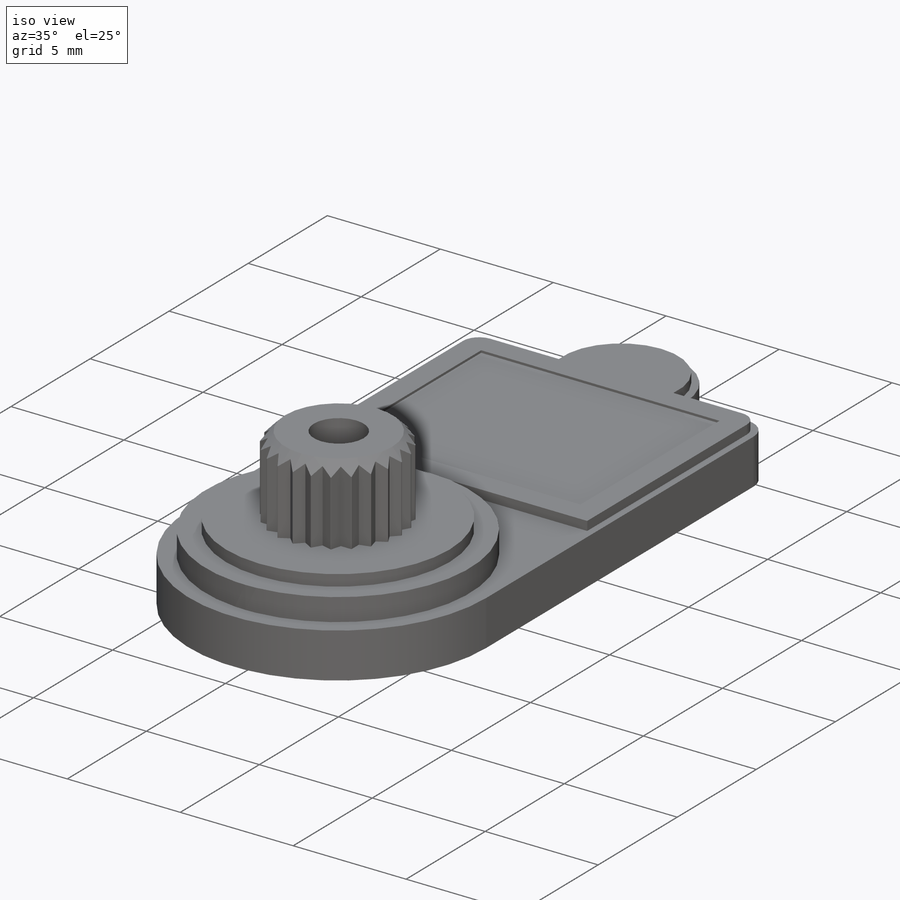
[diagram: iso view]
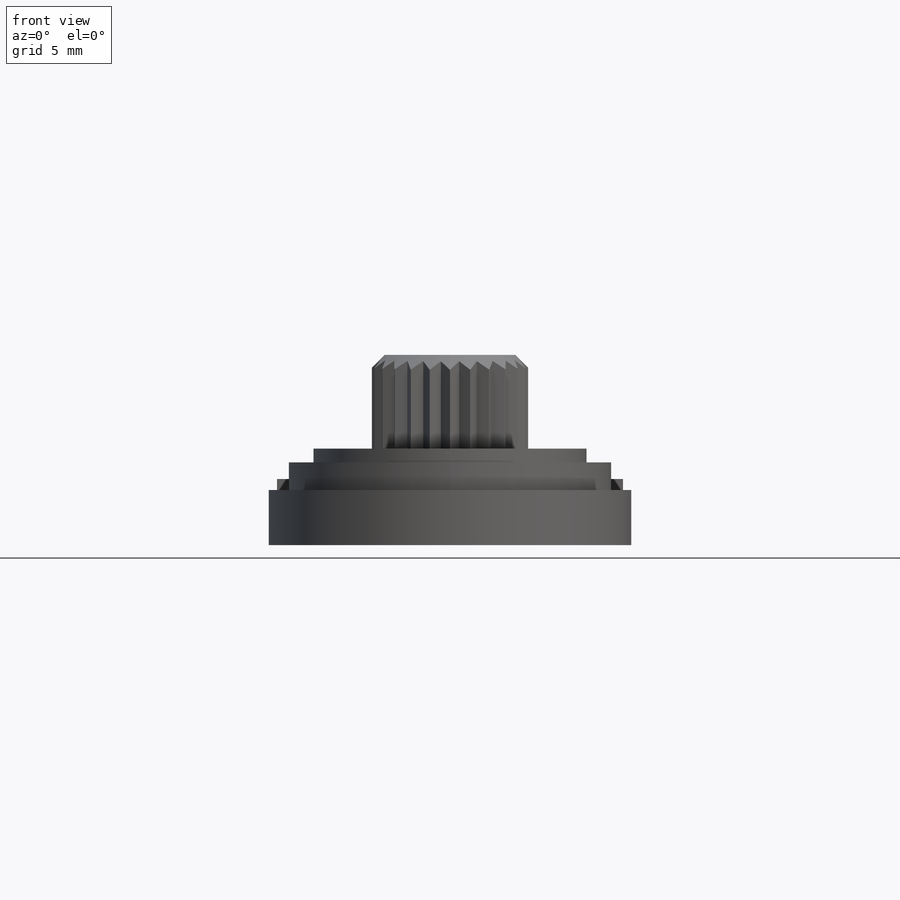
[diagram: front view]
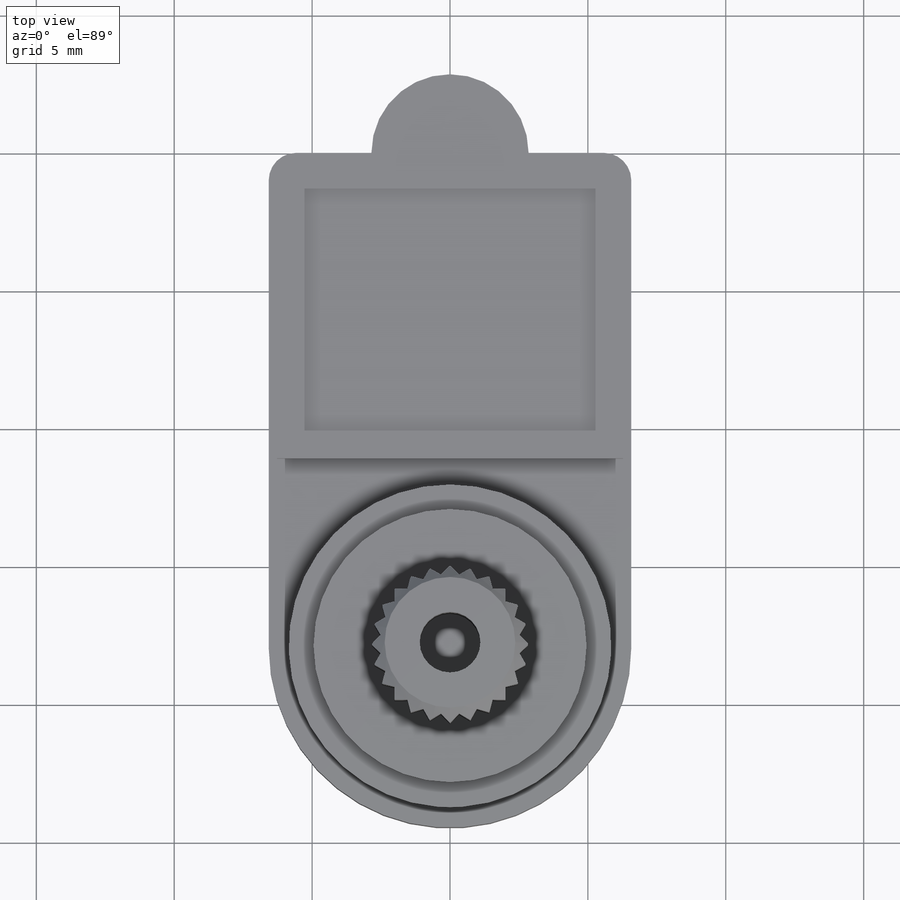
[diagram: top view]
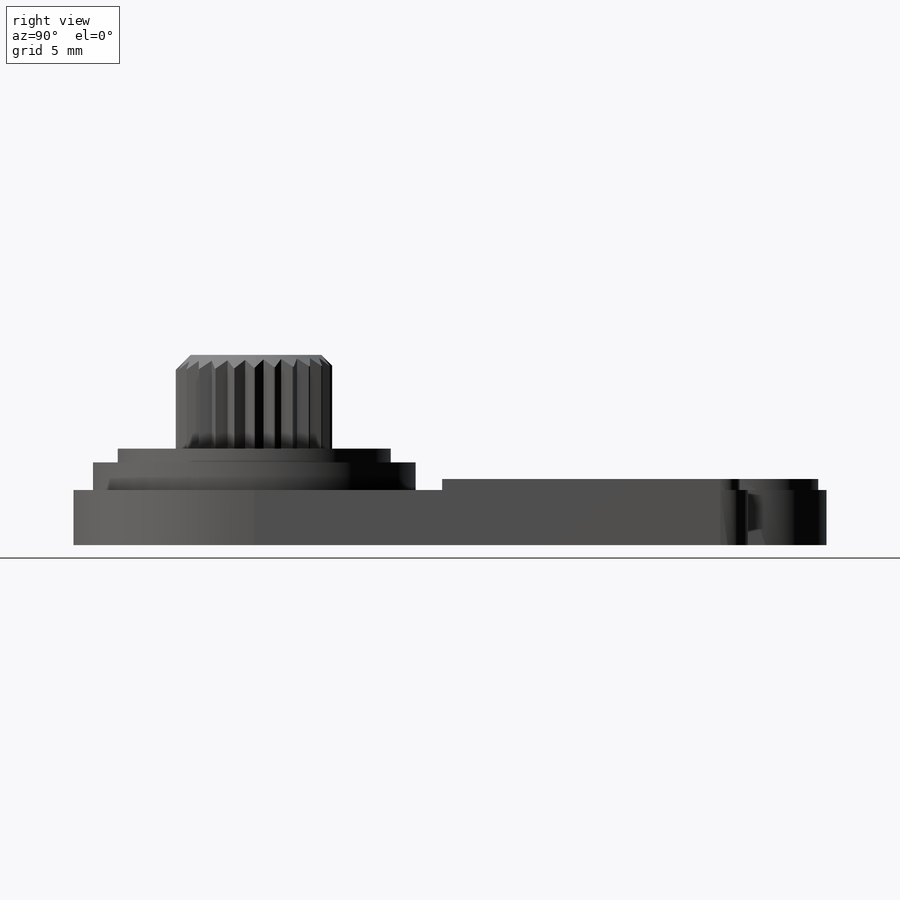
[diagram: right view]
SOLIDWORKS PART (.sldprt)
format: sldprt  version: not decoded by parser v0  size: 588,800 bytes
history: native  units: mm
features: sketch x8, extrude x5, cut_extrude x2, material x1, cut_revolve x1 (+13 scaffold rows collapsed)
feature tree (30):
  scaffold x13  (default folders/planes/origin — collapsed)
  material  "Material <not specified>"
  sketch  "Sketch1"  dims[c1.D3=1.0mm c1.D5=~12.779654mm c1.D6=5.7mm c1.D7=0.5mm c1.D1=13.15mm c1.D2=29.0mm c1.D4=6.6mm c2.D5=4.5mm]
  extrude  "Boss-Extrude1"  Depth=2mm
  sketch  "Sketch2"  dims[D1=11.7mm]
  extrude  "Boss-Extrude2"  Depth=1mm
  sketch  "Sketch3"  dims[D1=9.9mm]
  extrude  "Boss-Extrude3"  Depth=0.5mm
  sketch  "Sketch4"  dims[c1.D1=5.7mm c1.D3=5.0mm c1.D2=~0.629189mm c2.D2=45.0deg c2.D4=24.0]
  extrude  "Boss-Extrude4"  Depth=3.4mm
  sketch  "Sketch5"  dims[c1.D1=~1.307195mm c2.D1=45.0deg c2.D2=0.4mm c2.D3=~2.936765mm]
  cut_revolve  "Cut-Revolve1"  Angle=360deg
  sketch  "Sketch6"  dims[D1=2.2mm]
  cut_extrude  "Cut-Extrude1"  Depth=4mm
  sketch  "Sketch7"  dims[D1=0.3mm]
  extrude  "Boss-Extrude5"  Depth=0.4mm
  sketch  "Sketch8"  dims[D1=1.0mm D2=1.0mm D3=1.0mm D4=1.0mm]
  cut_extrude  "Cut-Extrude2"  Depth=0.1mm
decode coverage: 16 of 16 modeling features carry decoded parameters
note: ~ marks probable driven/reference dimensions
note: suppression state not decoded; provenance and decode notes live in map.json
